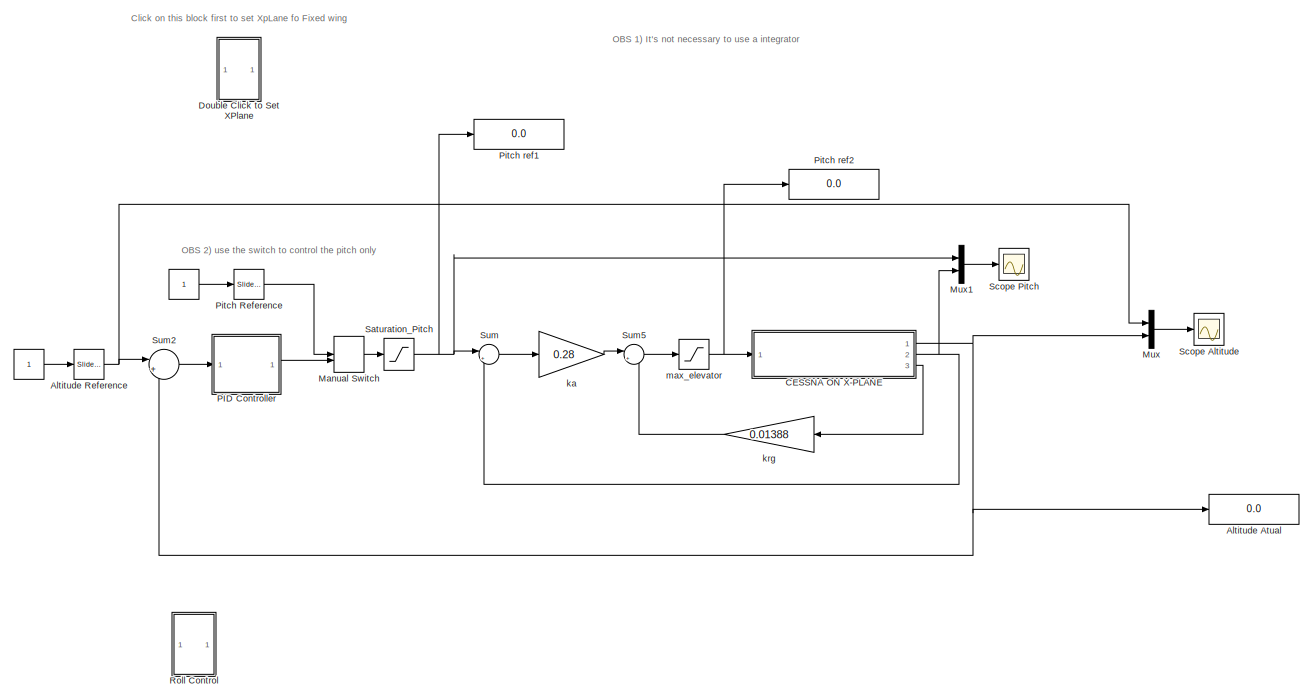
[diagram: root canvas - part 1/2, most of the canvas]
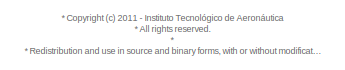
[diagram: root canvas - part 2/2, middle left region]
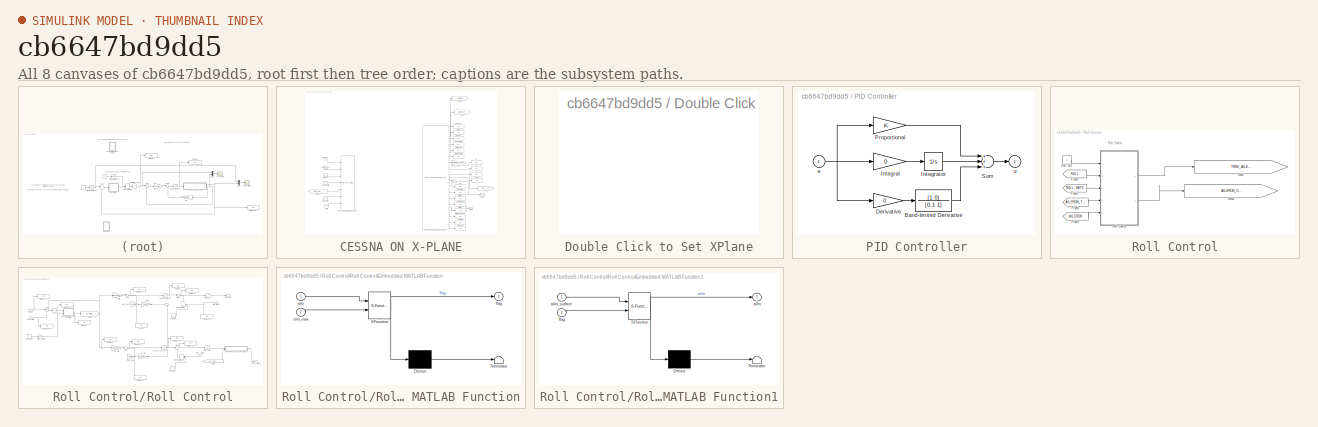
[diagram: thumbnail index - all 8 canvases of the model, root first then tree order]
MODEL slx_cb6647bd9dd5
KIND model
BLOCK [Constant]  
BLOCK [Constant]     
BLOCK [Display] Altitude Atual
  Decimation = 1
  Lockdown = off
  Ports = [1]
BLOCK [Reference] Altitude Reference   REF=simulink/Math
Operations/Slider
Gain
  Ports = [1, 1]
  SourceBlock = simulink/Math\nOperations/Slider\nGain
  SourceType = Slider Gain
  gain = 6000
  high = 10000
  low = 5000
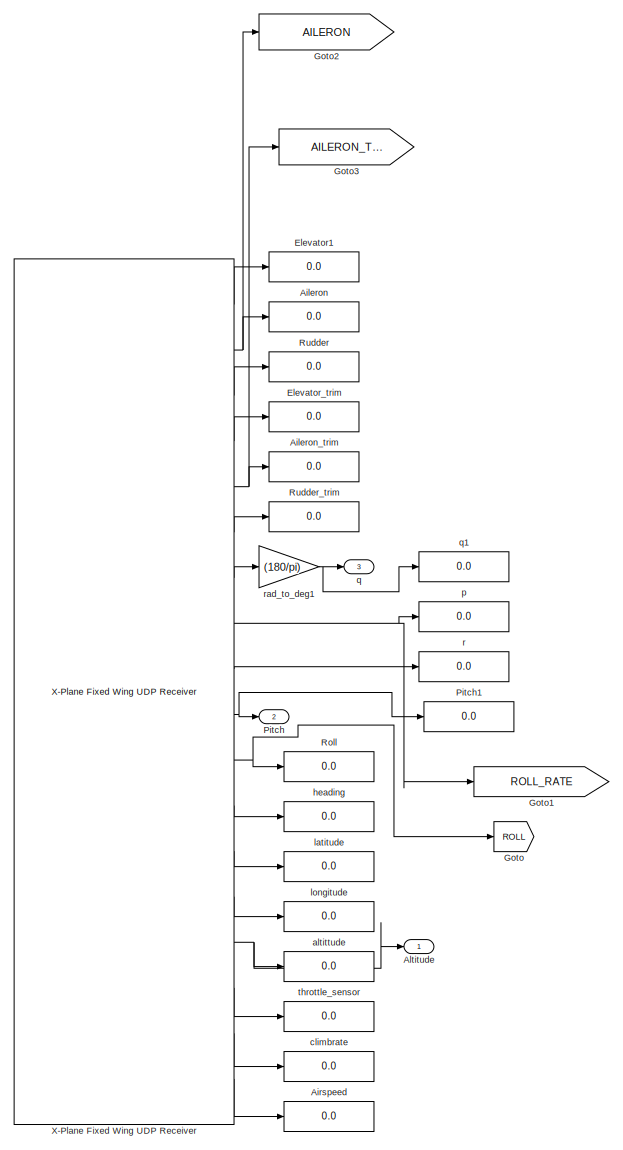
[diagram: CESSNA ON X-PLANE - part 1/2, right side, full height]
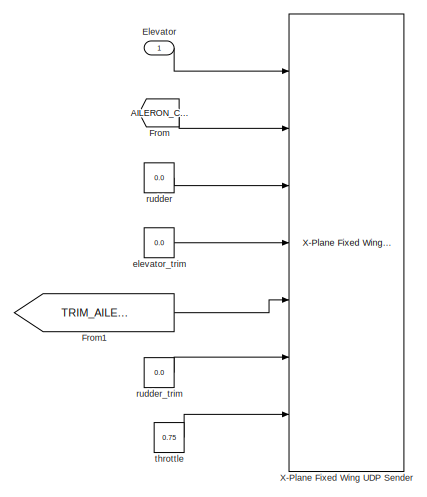
[diagram: CESSNA ON X-PLANE - part 2/2, middle left region]
BLOCK [SubSystem] CESSNA ON X-PLANE
  FunctionWithSeparateData = off
  MaskHideContents = off
  MinAlgLoopOccurrences = off
  Opaque = off
  Ports = [1, 3]
  PropExecContextOutsideSubsystem = off
  RTWSystemCode = Auto
  RequestExecContextInheritance = off
BLOCK [Display] CESSNA ON X-PLANE/Aileron
  Decimation = 1
  Lockdown = off
  Ports = [1]
BLOCK [Display] CESSNA ON X-PLANE/Aileron_trim
  Decimation = 1
  Lockdown = off
  Ports = [1]
BLOCK [Display] CESSNA ON X-PLANE/Airspeed
  Decimation = 1
  Lockdown = off
  Ports = [1]
BLOCK [Outport] CESSNA ON X-PLANE/Altitude
  IconDisplay = Port number
BLOCK [Inport] CESSNA ON X-PLANE/Elevator
  IconDisplay = Port number
BLOCK [Display] CESSNA ON X-PLANE/Elevator1
  Decimation = 1
  Lockdown = off
  Ports = [1]
BLOCK [Display] CESSNA ON X-PLANE/Elevator_trim
  Decimation = 1
  Lockdown = off
  Ports = [1]
BLOCK [From] CESSNA ON X-PLANE/From
  GotoTag = AILERON_CMD
  TagVisibility = global
BLOCK [From] CESSNA ON X-PLANE/From1
  GotoTag = TRIM_AILERON_CMD
  TagVisibility = global
BLOCK [Goto] CESSNA ON X-PLANE/Goto
  GotoTag = ROLL
  TagVisibility = global
BLOCK [Goto] CESSNA ON X-PLANE/Goto1
  GotoTag = ROLL_RATE
  TagVisibility = global
BLOCK [Goto] CESSNA ON X-PLANE/Goto2
  GotoTag = AILERON
  TagVisibility = global
BLOCK [Goto] CESSNA ON X-PLANE/Goto3
  GotoTag = AILERON_TRIM
  TagVisibility = global
BLOCK [Outport] CESSNA ON X-PLANE/Pitch
  IconDisplay = Port number
  Port = 2
BLOCK [Display] CESSNA ON X-PLANE/Pitch1
  Decimation = 1
  Lockdown = off
  Ports = [1]
BLOCK [Display] CESSNA ON X-PLANE/Roll
  Decimation = 1
  Lockdown = off
  Ports = [1]
BLOCK [Display] CESSNA ON X-PLANE/Rudder
  Decimation = 1
  Lockdown = off
  Ports = [1]
BLOCK [Display] CESSNA ON X-PLANE/Rudder_trim
  Decimation = 1
  Lockdown = off
  Ports = [1]
BLOCK [Reference] CESSNA ON X-PLANE/X-Plane Fixed Wing UDP Receiver  REF=X_Plane_Communication_Library/Fixed Wing/X-Plane Fixed Wing UDP Receiver
  Ports = [0, 18]
  SourceBlock = X_Plane_Communication_Library/Fixed Wing/X-Plane Fixed Wing UDP Receiver
  ip_adress = '127.0.0.1'
  port_number = 49004
BLOCK [Reference] CESSNA ON X-PLANE/X-Plane Fixed Wing UDP Sender  REF=X_Plane_Communication_Library/Fixed Wing/X-Plane Fixed Wing UDP Sender
  Ports = [7]
  SourceBlock = X_Plane_Communication_Library/Fixed Wing/X-Plane Fixed Wing UDP Sender
  ip_adress = '127.0.0.1'
  port_number = 49000
BLOCK [Display] CESSNA ON X-PLANE/altittude
  Decimation = 1
  Lockdown = off
  Ports = [1]
BLOCK [Display] CESSNA ON X-PLANE/climbrate
  Decimation = 1
  Lockdown = off
  Ports = [1]
BLOCK [Constant] CESSNA ON X-PLANE/elevator_trim
  Value = 0.0
BLOCK [Display] CESSNA ON X-PLANE/heading
  Decimation = 1
  Lockdown = off
  Ports = [1]
BLOCK [Display] CESSNA ON X-PLANE/latitude
  Decimation = 1
  Lockdown = off
  Ports = [1]
BLOCK [Display] CESSNA ON X-PLANE/longitude
  Decimation = 1
  Lockdown = off
  Ports = [1]
BLOCK [Display] CESSNA ON X-PLANE/p
  Decimation = 1
  Lockdown = off
  Ports = [1]
BLOCK [Outport] CESSNA ON X-PLANE/q
  IconDisplay = Port number
  Port = 3
BLOCK [Display] CESSNA ON X-PLANE/q1
  Decimation = 1
  Lockdown = off
  Ports = [1]
BLOCK [Display] CESSNA ON X-PLANE/r
  Decimation = 1
  Lockdown = off
  Ports = [1]
BLOCK [Gain] CESSNA ON X-PLANE/rad_to_deg1
  Gain = (180/pi)
  OutDataTypeStr = Inherit: Inherit via internal rule
  ParamDataTypeStr = Inherit: Inherit via internal rule
  SaturateOnIntegerOverflow = off
BLOCK [Constant] CESSNA ON X-PLANE/rudder
  Value = 0.0
BLOCK [Constant] CESSNA ON X-PLANE/rudder_trim
  Value = 0.0
BLOCK [Constant] CESSNA ON X-PLANE/throttle
  Value = 0.75
BLOCK [Display] CESSNA ON X-PLANE/throttle_sensor
  Decimation = 1
  Lockdown = off
  Ports = [1]
BLOCK [SubSystem] Double Click to Set XPlane
  FunctionWithSeparateData = off
  LoadFcn = selecting_parameters()
  MaskHideContents = off
  MinAlgLoopOccurrences = off
  Opaque = off
  OpenFcn = selecting_parameters()
  Ports = []
  PropExecContextOutsideSubsystem = off
  RTWSystemCode = Auto
  RequestExecContextInheritance = off
BLOCK [ManualSwitch] Manual Switch
BLOCK [Mux] Mux
  DisplayOption = bar
  Inputs = 2
  Ports = [2, 1]
BLOCK [Mux] Mux1
  DisplayOption = bar
  Inputs = 2
  Ports = [2, 1]
BLOCK [SubSystem] PID Controller
  FunctionWithSeparateData = off
  MaskHideContents = off
  MinAlgLoopOccurrences = off
  Opaque = off
  Ports = [1, 1]
  PropExecContextOutsideSubsystem = off
  RTWSystemCode = Auto
  RequestExecContextInheritance = off
BLOCK [TransferFcn] PID Controller/Band-limited Derivative
  Denominator = [0.1 1]
  Numerator = [1 0]
BLOCK [Gain] PID Controller/Derivative
  Gain = 0
BLOCK [Gain] PID Controller/Integral
  Gain = 0
BLOCK [Integrator] PID Controller/Integrator
  Ports = [1, 1]
BLOCK [Gain] PID Controller/Proportional
BLOCK [Sum] PID Controller/Sum
  Inputs = +++
  Ports = [3, 1]
BLOCK [Inport] PID Controller/e
  IconDisplay = Port number
BLOCK [Outport] PID Controller/u
  IconDisplay = Port number
  InitialOutput = 0
BLOCK [Reference] Pitch Reference   REF=simulink/Math
Operations/Slider
Gain
  Ports = [1, 1]
  SourceBlock = simulink/Math\nOperations/Slider\nGain
  SourceType = Slider Gain
  gain = 6
  high = 15
  low = 0
BLOCK [Display] Pitch ref1
  Decimation = 1
  Lockdown = off
  Ports = [1]
BLOCK [Display] Pitch ref2
  Decimation = 1
  Lockdown = off
  Ports = [1]
BLOCK [SubSystem] Roll Control
  FunctionWithSeparateData = off
  MaskHideContents = off
  MinAlgLoopOccurrences = off
  Opaque = off
  Ports = []
  PropExecContextOutsideSubsystem = off
  RTWSystemCode = Auto
  RequestExecContextInheritance = off
BLOCK [From] Roll Control/From4
  CloseFcn = tagdialog Close
  GotoTag = ROLL
  TagVisibility = global
BLOCK [From] Roll Control/From5
  CloseFcn = tagdialog Close
  GotoTag = ROLL_RATE
  TagVisibility = global
BLOCK [From] Roll Control/From6
  CloseFcn = tagdialog Close
  GotoTag = AILERON_TRIM
  TagVisibility = global
BLOCK [From] Roll Control/From7
  CloseFcn = tagdialog Close
  GotoTag = AILERON
  TagVisibility = global
BLOCK [Goto] Roll Control/Goto
  GotoTag = TRIM_AILERON_CMD
  TagVisibility = global
BLOCK [Goto] Roll Control/Goto1
  GotoTag = AILERON_CMD
  TagVisibility = global
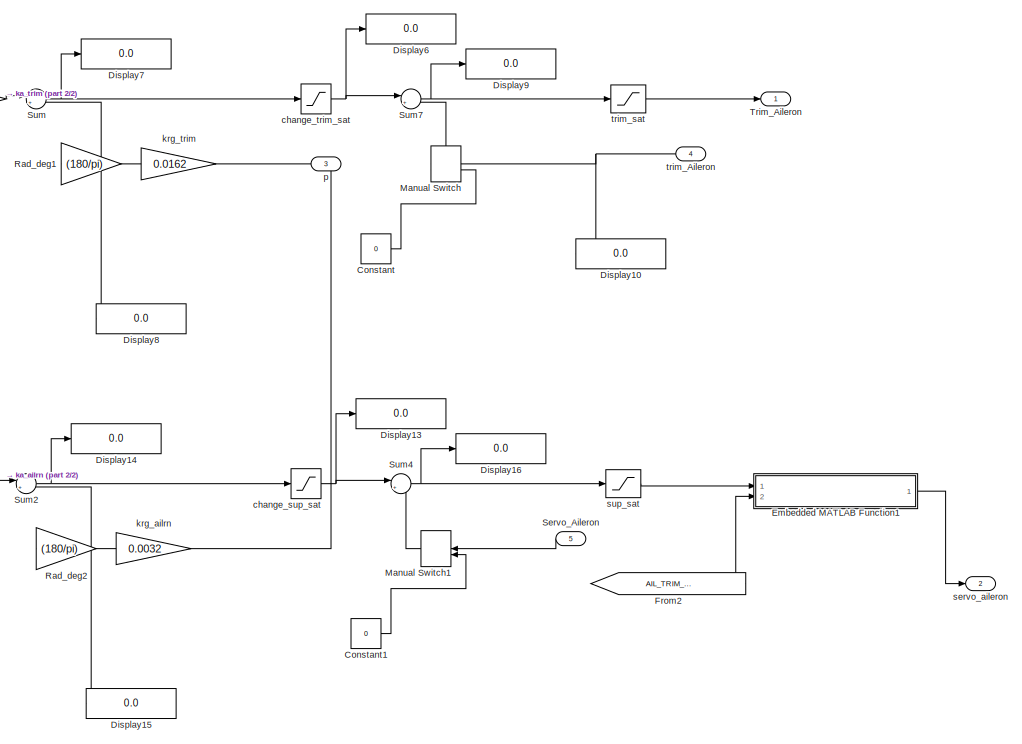
[diagram: Roll Control/Roll Control - part 1/2, right side, full height]
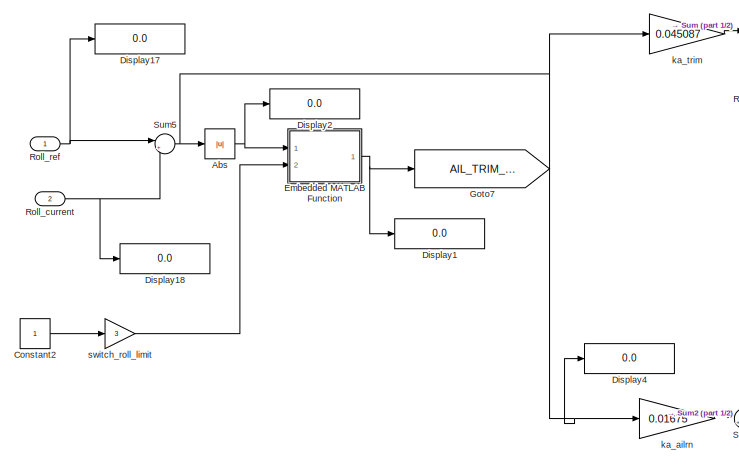
[diagram: Roll Control/Roll Control - part 2/2, middle left region]
BLOCK [SubSystem] Roll Control/Roll Control
  FunctionWithSeparateData = off
  MaskHideContents = off
  MinAlgLoopOccurrences = off
  Opaque = off
  Ports = [5, 2]
  PropExecContextOutsideSubsystem = off
  RTWSystemCode = Auto
  RequestExecContextInheritance = off
BLOCK [Abs] Roll Control/Roll Control/Abs
  SaturateOnIntegerOverflow = off
BLOCK [Constant] Roll Control/Roll Control/Constant
  Value = 0
BLOCK [Constant] Roll Control/Roll Control/Constant1
  Value = 0
BLOCK [Constant] Roll Control/Roll Control/Constant2
BLOCK [Display] Roll Control/Roll Control/Display1
  Decimation = 1
  Lockdown = off
  Ports = [1]
BLOCK [Display] Roll Control/Roll Control/Display10
  Decimation = 1
  Lockdown = off
  Ports = [1]
BLOCK [Display] Roll Control/Roll Control/Display13
  Decimation = 1
  Lockdown = off
  Ports = [1]
BLOCK [Display] Roll Control/Roll Control/Display14
  Decimation = 1
  Lockdown = off
  Ports = [1]
BLOCK [Display] Roll Control/Roll Control/Display15
  Decimation = 1
  Lockdown = off
  Ports = [1]
BLOCK [Display] Roll Control/Roll Control/Display16
  Decimation = 1
  Lockdown = off
  Ports = [1]
BLOCK [Display] Roll Control/Roll Control/Display17
  Decimation = 1
  Lockdown = off
  Ports = [1]
BLOCK [Display] Roll Control/Roll Control/Display18
  Decimation = 1
  Lockdown = off
  Ports = [1]
BLOCK [Display] Roll Control/Roll Control/Display2
  Decimation = 1
  Lockdown = off
  Ports = [1]
BLOCK [Display] Roll Control/Roll Control/Display4
  Decimation = 1
  Lockdown = off
  Ports = [1]
BLOCK [Display] Roll Control/Roll Control/Display6
  Decimation = 1
  Lockdown = off
  Ports = [1]
BLOCK [Display] Roll Control/Roll Control/Display7
  Decimation = 1
  Lockdown = off
  Ports = [1]
BLOCK [Display] Roll Control/Roll Control/Display8
  Decimation = 1
  Lockdown = off
  Ports = [1]
BLOCK [Display] Roll Control/Roll Control/Display9
  Decimation = 1
  Lockdown = off
  Ports = [1]
BLOCK [SubSystem] Roll Control/Roll Control/Embedded MATLAB Function
  ErrorFcn = Stateflow.Translate.translate
  FunctionWithSeparateData = off
  MaskHideContents = off
  MinAlgLoopOccurrences = off
  Opaque = off
  PermitHierarchicalResolution = ExplicitOnly
  Ports = [2, 1]
  PropExecContextOutsideSubsystem = off
  RTWSystemCode = Auto
  RequestExecContextInheritance = off
  SFBlockType = MATLAB Function
  TreatAsAtomicUnit = on
BLOCK [Demux] Roll Control/Roll Control/Embedded MATLAB Function/ Demux 
  Outputs = 1
  Ports = [1, 1]
BLOCK [S-Function] Roll Control/Roll Control/Embedded MATLAB Function/ SFunction 
  EnableBusSupport = on
  FunctionName = sf_sfun
  PortCounts = [2 2]
  Ports = [2, 2]
  Tag = Stateflow S-Function Cessna_Altitude_Control_Example 6
BLOCK [Terminator] Roll Control/Roll Control/Embedded MATLAB Function/ Terminator 
BLOCK [Inport] Roll Control/Roll Control/Embedded MATLAB Function/erro
  IconDisplay = Port number
BLOCK [Inport] Roll Control/Roll Control/Embedded MATLAB Function/erro_max
  IconDisplay = Port number
  Port = 2
BLOCK [Outport] Roll Control/Roll Control/Embedded MATLAB Function/flag
  IconDisplay = Port number
BLOCK [SubSystem] Roll Control/Roll Control/Embedded MATLAB Function1
  ErrorFcn = Stateflow.Translate.translate
  FunctionWithSeparateData = off
  MaskHideContents = off
  MinAlgLoopOccurrences = off
  Opaque = off
  PermitHierarchicalResolution = ExplicitOnly
  Ports = [2, 1]
  PropExecContextOutsideSubsystem = off
  RTWSystemCode = Auto
  RequestExecContextInheritance = off
  SFBlockType = MATLAB Function
  TreatAsAtomicUnit = on
BLOCK [Demux] Roll Control/Roll Control/Embedded MATLAB Function1/ Demux 
  Outputs = 1
  Ports = [1, 1]
BLOCK [S-Function] Roll Control/Roll Control/Embedded MATLAB Function1/ SFunction 
  EnableBusSupport = on
  FunctionName = sf_sfun
  PortCounts = [2 2]
  Ports = [2, 2]
  Tag = Stateflow S-Function Cessna_Altitude_Control_Example 3
BLOCK [Terminator] Roll Control/Roll Control/Embedded MATLAB Function1/ Terminator 
BLOCK [Outport] Roll Control/Roll Control/Embedded MATLAB Function1/ailrn
  IconDisplay = Port number
BLOCK [Inport] Roll Control/Roll Control/Embedded MATLAB Function1/ailrn_surface
  IconDisplay = Port number
BLOCK [Inport] Roll Control/Roll Control/Embedded MATLAB Function1/flag
  IconDisplay = Port number
  Port = 2
BLOCK [From] Roll Control/Roll Control/From2
  CloseFcn = tagdialog Close
  GotoTag = AIL_TRIM_SELECT
  TagVisibility = global
BLOCK [Goto] Roll Control/Roll Control/Goto7
  GotoTag = AIL_TRIM_SELECT
  TagVisibility = global
BLOCK [ManualSwitch] Roll Control/Roll Control/Manual Switch
BLOCK [ManualSwitch] Roll Control/Roll Control/Manual Switch1
BLOCK [Gain] Roll Control/Roll Control/Rad_deg1
  Gain = (180/pi)
  OutDataTypeStr = Inherit: Inherit via internal rule
  ParamDataTypeStr = Inherit: Inherit via internal rule
  SaturateOnIntegerOverflow = off
BLOCK [Gain] Roll Control/Roll Control/Rad_deg2
  Gain = (180/pi)
  OutDataTypeStr = Inherit: Inherit via internal rule
  ParamDataTypeStr = Inherit: Inherit via internal rule
  SaturateOnIntegerOverflow = off
BLOCK [Inport] Roll Control/Roll Control/Roll_current
  IconDisplay = Port number
  Port = 2
BLOCK [Inport] Roll Control/Roll Control/Roll_ref
  IconDisplay = Port number
BLOCK [Inport] Roll Control/Roll Control/Servo_Aileron
  IconDisplay = Port number
  Port = 5
BLOCK [Sum] Roll Control/Roll Control/Sum
  IconShape = round
  InputSameDT = off
  Inputs = |+-
  OutDataTypeStr = Inherit: Inherit via internal rule
  Ports = [2, 1]
  SaturateOnIntegerOverflow = off
BLOCK [Sum] Roll Control/Roll Control/Sum2
  IconShape = round
  InputSameDT = off
  Inputs = |+-
  OutDataTypeStr = Inherit: Inherit via internal rule
  Ports = [2, 1]
  SaturateOnIntegerOverflow = off
BLOCK [Sum] Roll Control/Roll Control/Sum4
  IconShape = round
  InputSameDT = off
  Inputs = |++
  OutDataTypeStr = Inherit: Inherit via internal rule
  Ports = [2, 1]
  SaturateOnIntegerOverflow = off
BLOCK [Sum] Roll Control/Roll Control/Sum5
  IconShape = round
  InputSameDT = off
  Inputs = |+-
  OutDataTypeStr = Inherit: Inherit via internal rule
  Ports = [2, 1]
  SaturateOnIntegerOverflow = off
BLOCK [Sum] Roll Control/Roll Control/Sum7
  IconShape = round
  InputSameDT = off
  Inputs = |++
  OutDataTypeStr = Inherit: Inherit via internal rule
  Ports = [2, 1]
  SaturateOnIntegerOverflow = off
BLOCK [Outport] Roll Control/Roll Control/Trim_Aileron
  IconDisplay = Port number
BLOCK [Saturate] Roll Control/Roll Control/change_sup_sat
  InputPortMap = u0
  LowerLimit = -0.1
  Ports = [1, 1]
  UpperLimit = 0.1
BLOCK [Saturate] Roll Control/Roll Control/change_trim_sat
  InputPortMap = u0
  LowerLimit = -0.1
  Ports = [1, 1]
  UpperLimit = 0.1
BLOCK [Gain] Roll Control/Roll Control/ka_ailrn
  Gain = 0.01675
  SaturateOnIntegerOverflow = off
BLOCK [Gain] Roll Control/Roll Control/ka_trim
  Gain = 0.045087
  SaturateOnIntegerOverflow = off
BLOCK [Gain] Roll Control/Roll Control/krg_ailrn
  Gain = 0.0032
  SaturateOnIntegerOverflow = off
BLOCK [Gain] Roll Control/Roll Control/krg_trim
  Gain = 0.0162
  SaturateOnIntegerOverflow = off
BLOCK [Inport] Roll Control/Roll Control/p
  IconDisplay = Port number
  Port = 3
BLOCK [Outport] Roll Control/Roll Control/servo_aileron
  IconDisplay = Port number
  Port = 2
BLOCK [Saturate] Roll Control/Roll Control/sup_sat
  InputPortMap = u0
  LowerLimit = -0.9
  OutDataTypeStr = double
  OutMax = 1
  OutMin = -1
  Ports = [1, 1]
  RndMeth = Nearest
  UpperLimit = 0.9
BLOCK [Gain] Roll Control/Roll Control/switch_roll_limit
  Gain = 3
  OutDataTypeStr = Inherit: Inherit via internal rule
  ParamDataTypeStr = Inherit: Inherit via internal rule
  SaturateOnIntegerOverflow = off
BLOCK [Inport] Roll Control/Roll Control/trim_Aileron
  IconDisplay = Port number
  Port = 4
BLOCK [Saturate] Roll Control/Roll Control/trim_sat
  InputPortMap = u0
  LowerLimit = -1
  OutDataTypeStr = double
  OutMax = 1
  OutMin = -1
  Ports = [1, 1]
  RndMeth = Nearest
  UpperLimit = 1
BLOCK [Constant] Roll Control/Roll ref3
  Value = 0
BLOCK [Saturate] Saturation_Pitch
  InputPortMap = u0
  LowerLimit = -20
  Ports = [1, 1]
  UpperLimit = 20
BLOCK [Scope] Scope Altitude
  DataFormat = StructureWithTime
  Floating = off
  LimitDataPoints = off
  NumInputPorts = 1
  Ports = [1]
  SampleTime = 0
  ShowLegends = off
  YMax = 825
  YMin = 800
BLOCK [Scope] Scope Pitch
  DataFormat = StructureWithTime
  Floating = off
  LimitDataPoints = off
  NumInputPorts = 1
  Ports = [1]
  SampleTime = 0
  SaveName = ScopeData1
  ShowLegends = off
  YMax = 6
  YMin = 3.8
BLOCK [Sum] Sum
  IconShape = round
  InputSameDT = off
  Inputs = |+-
  OutDataTypeStr = Inherit: Inherit via internal rule
  Ports = [2, 1]
  SaturateOnIntegerOverflow = off
BLOCK [Sum] Sum2
  IconShape = round
  InputSameDT = off
  Inputs = |+-
  OutDataTypeStr = Inherit: Inherit via internal rule
  Ports = [2, 1]
BLOCK [Sum] Sum5
  IconShape = round
  InputSameDT = off
  Inputs = |+-
  OutDataTypeStr = Inherit: Inherit via internal rule
  Ports = [2, 1]
  SaturateOnIntegerOverflow = off
BLOCK [Gain] ka
  Gain = 0.28
  SaturateOnIntegerOverflow = off
BLOCK [Gain] krg
  Gain = 0.01388
  SaturateOnIntegerOverflow = off
BLOCK [Saturate] max_elevator
  InputPortMap = u0
  Ports = [1, 1]
ANNOTATION (root): * <copyright redacted>
ANNOTATION (root): Click on this block first to set XpLane fo Fixed wing
ANNOTATION (root): OBS 1) It's not necessary to use a integrator
ANNOTATION (root): OBS 2) use the switch to control the pitch only
ANNOTATION Roll Control: Roll Control
LINE     :1 -> Pitch Reference :1
LINE  :1 -> Altitude Reference :1
NET Altitude Reference :1 -> Mux:1, Sum2:1
LINE CESSNA ON X-PLANE/Elevator:1 -> CESSNA ON X-PLANE/X-Plane Fixed Wing UDP Sender:1
LINE CESSNA ON X-PLANE/From1:1 -> CESSNA ON X-PLANE/X-Plane Fixed Wing UDP Sender:5
LINE CESSNA ON X-PLANE/From:1 -> CESSNA ON X-PLANE/X-Plane Fixed Wing UDP Sender:2
LINE CESSNA ON X-PLANE/X-Plane Fixed Wing UDP Receiver:1 -> CESSNA ON X-PLANE/Elevator1:1
NET CESSNA ON X-PLANE/X-Plane Fixed Wing UDP Receiver:10 -> CESSNA ON X-PLANE/Pitch1:1, CESSNA ON X-PLANE/Pitch:1
NET CESSNA ON X-PLANE/X-Plane Fixed Wing UDP Receiver:11 -> CESSNA ON X-PLANE/Goto:1, CESSNA ON X-PLANE/Roll:1
LINE CESSNA ON X-PLANE/X-Plane Fixed Wing UDP Receiver:12 -> CESSNA ON X-PLANE/heading:1
LINE CESSNA ON X-PLANE/X-Plane Fixed Wing UDP Receiver:13 -> CESSNA ON X-PLANE/latitude:1
LINE CESSNA ON X-PLANE/X-Plane Fixed Wing UDP Receiver:14 -> CESSNA ON X-PLANE/longitude:1
NET CESSNA ON X-PLANE/X-Plane Fixed Wing UDP Receiver:15 -> CESSNA ON X-PLANE/Altitude:1, CESSNA ON X-PLANE/altittude:1
LINE CESSNA ON X-PLANE/X-Plane Fixed Wing UDP Receiver:16 -> CESSNA ON X-PLANE/throttle_sensor:1
LINE CESSNA ON X-PLANE/X-Plane Fixed Wing UDP Receiver:17 -> CESSNA ON X-PLANE/climbrate:1
LINE CESSNA ON X-PLANE/X-Plane Fixed Wing UDP Receiver:18 -> CESSNA ON X-PLANE/Airspeed:1
NET CESSNA ON X-PLANE/X-Plane Fixed Wing UDP Receiver:2 -> CESSNA ON X-PLANE/Aileron:1, CESSNA ON X-PLANE/Goto2:1
LINE CESSNA ON X-PLANE/X-Plane Fixed Wing UDP Receiver:3 -> CESSNA ON X-PLANE/Rudder:1
LINE CESSNA ON X-PLANE/X-Plane Fixed Wing UDP Receiver:4 -> CESSNA ON X-PLANE/Elevator_trim:1
NET CESSNA ON X-PLANE/X-Plane Fixed Wing UDP Receiver:5 -> CESSNA ON X-PLANE/Aileron_trim:1, CESSNA ON X-PLANE/Goto3:1
LINE CESSNA ON X-PLANE/X-Plane Fixed Wing UDP Receiver:6 -> CESSNA ON X-PLANE/Rudder_trim:1
LINE CESSNA ON X-PLANE/X-Plane Fixed Wing UDP Receiver:7 -> CESSNA ON X-PLANE/rad_to_deg1:1
NET CESSNA ON X-PLANE/X-Plane Fixed Wing UDP Receiver:8 -> CESSNA ON X-PLANE/Goto1:1, CESSNA ON X-PLANE/p:1
LINE CESSNA ON X-PLANE/X-Plane Fixed Wing UDP Receiver:9 -> CESSNA ON X-PLANE/r:1
LINE CESSNA ON X-PLANE/elevator_trim:1 -> CESSNA ON X-PLANE/X-Plane Fixed Wing UDP Sender:4
NET CESSNA ON X-PLANE/rad_to_deg1:1 -> CESSNA ON X-PLANE/q1:1, CESSNA ON X-PLANE/q:1
LINE CESSNA ON X-PLANE/rudder:1 -> CESSNA ON X-PLANE/X-Plane Fixed Wing UDP Sender:3
LINE CESSNA ON X-PLANE/rudder_trim:1 -> CESSNA ON X-PLANE/X-Plane Fixed Wing UDP Sender:6
LINE CESSNA ON X-PLANE/throttle:1 -> CESSNA ON X-PLANE/X-Plane Fixed Wing UDP Sender:7
NET CESSNA ON X-PLANE:1 -> Altitude Atual:1, Mux:2, Sum2:2
NET CESSNA ON X-PLANE:2 -> Mux1:2, Sum:2
LINE CESSNA ON X-PLANE:3 -> krg:1
LINE Manual Switch:1 -> Saturation_Pitch:1
LINE Mux1:1 -> Scope Pitch:1
LINE Mux:1 -> Scope Altitude:1
LINE PID Controller/Band-limited Derivative:1 -> PID Controller/Sum:3
LINE PID Controller/Derivative:1 -> PID Controller/Band-limited Derivative:1
LINE PID Controller/Integral:1 -> PID Controller/Integrator:1
LINE PID Controller/Integrator:1 -> PID Controller/Sum:2
LINE PID Controller/Proportional:1 -> PID Controller/Sum:1
LINE PID Controller/Sum:1 -> PID Controller/u:1
NET PID Controller/e:1 -> PID Controller/Derivative:1, PID Controller/Integral:1, PID Controller/Proportional:1
LINE PID Controller:1 -> Manual Switch:2
LINE Pitch Reference :1 -> Manual Switch:1
LINE Roll Control/From4:1 -> Roll Control/Roll Control:2
LINE Roll Control/From5:1 -> Roll Control/Roll Control:3
LINE Roll Control/From6:1 -> Roll Control/Roll Control:4
LINE Roll Control/From7:1 -> Roll Control/Roll Control:5
NET Roll Control/Roll Control/Abs:1 -> Roll Control/Roll Control/Display2:1, Roll Control/Roll Control/Embedded MATLAB Function:1
LINE Roll Control/Roll Control/Constant1:1 -> Roll Control/Roll Control/Manual Switch1:2
LINE Roll Control/Roll Control/Constant2:1 -> Roll Control/Roll Control/switch_roll_limit:1
LINE Roll Control/Roll Control/Constant:1 -> Roll Control/Roll Control/Manual Switch:2
LINE Roll Control/Roll Control/Embedded MATLAB Function1:1 -> Roll Control/Roll Control/servo_aileron:1
NET Roll Control/Roll Control/Embedded MATLAB Function:1 -> Roll Control/Roll Control/Display1:1, Roll Control/Roll Control/Goto7:1
LINE Roll Control/Roll Control/From2:1 -> Roll Control/Roll Control/Embedded MATLAB Function1:2
LINE Roll Control/Roll Control/Manual Switch1:1 -> Roll Control/Roll Control/Sum4:2
LINE Roll Control/Roll Control/Manual Switch:1 -> Roll Control/Roll Control/Sum7:2
NET Roll Control/Roll Control/Rad_deg1:1 -> Roll Control/Roll Control/Display8:1, Roll Control/Roll Control/Sum:2
NET Roll Control/Roll Control/Rad_deg2:1 -> Roll Control/Roll Control/Display15:1, Roll Control/Roll Control/Sum2:2
NET Roll Control/Roll Control/Roll_current:1 -> Roll Control/Roll Control/Display18:1, Roll Control/Roll Control/Sum5:2
NET Roll Control/Roll Control/Roll_ref:1 -> Roll Control/Roll Control/Display17:1, Roll Control/Roll Control/Sum5:1
LINE Roll Control/Roll Control/Servo_Aileron:1 -> Roll Control/Roll Control/Manual Switch1:1
NET Roll Control/Roll Control/Sum2:1 -> Roll Control/Roll Control/Display14:1, Roll Control/Roll Control/change_sup_sat:1
NET Roll Control/Roll Control/Sum4:1 -> Roll Control/Roll Control/Display16:1, Roll Control/Roll Control/sup_sat:1
NET Roll Control/Roll Control/Sum5:1 -> Roll Control/Roll Control/Abs:1, Roll Control/Roll Control/Display4:1, Roll Control/Roll Control/ka_ailrn:1, Roll Control/Roll Control/ka_trim:1
NET Roll Control/Roll Control/Sum7:1 -> Roll Control/Roll Control/Display9:1, Roll Control/Roll Control/trim_sat:1
NET Roll Control/Roll Control/Sum:1 -> Roll Control/Roll Control/Display7:1, Roll Control/Roll Control/change_trim_sat:1
NET Roll Control/Roll Control/change_sup_sat:1 -> Roll Control/Roll Control/Display13:1, Roll Control/Roll Control/Sum4:1
NET Roll Control/Roll Control/change_trim_sat:1 -> Roll Control/Roll Control/Display6:1, Roll Control/Roll Control/Sum7:1
LINE Roll Control/Roll Control/ka_ailrn:1 -> Roll Control/Roll Control/Sum2:1
LINE Roll Control/Roll Control/ka_trim:1 -> Roll Control/Roll Control/Sum:1
LINE Roll Control/Roll Control/krg_ailrn:1 -> Roll Control/Roll Control/Rad_deg2:1
LINE Roll Control/Roll Control/krg_trim:1 -> Roll Control/Roll Control/Rad_deg1:1
NET Roll Control/Roll Control/p:1 -> Roll Control/Roll Control/krg_ailrn:1, Roll Control/Roll Control/krg_trim:1
LINE Roll Control/Roll Control/sup_sat:1 -> Roll Control/Roll Control/Embedded MATLAB Function1:1
LINE Roll Control/Roll Control/switch_roll_limit:1 -> Roll Control/Roll Control/Embedded MATLAB Function:2
NET Roll Control/Roll Control/trim_Aileron:1 -> Roll Control/Roll Control/Display10:1, Roll Control/Roll Control/Manual Switch:1
LINE Roll Control/Roll Control/trim_sat:1 -> Roll Control/Roll Control/Trim_Aileron:1
LINE Roll Control/Roll Control:1 -> Roll Control/Goto:1
LINE Roll Control/Roll Control:2 -> Roll Control/Goto1:1
LINE Roll Control/Roll ref3:1 -> Roll Control/Roll Control:1
NET Saturation_Pitch:1 -> Mux1:1, Pitch ref1:1, Sum:1
LINE Sum2:1 -> PID Controller:1
LINE Sum5:1 -> max_elevator:1
LINE Sum:1 -> ka:1
LINE ka:1 -> Sum5:1
LINE krg:1 -> Sum5:2
NET max_elevator:1 -> CESSNA ON X-PLANE:1, Pitch ref2:1
note: NET lines group one-source signal fan-out (src -> all destinations, sorted); 1:1 wires keep LINE
